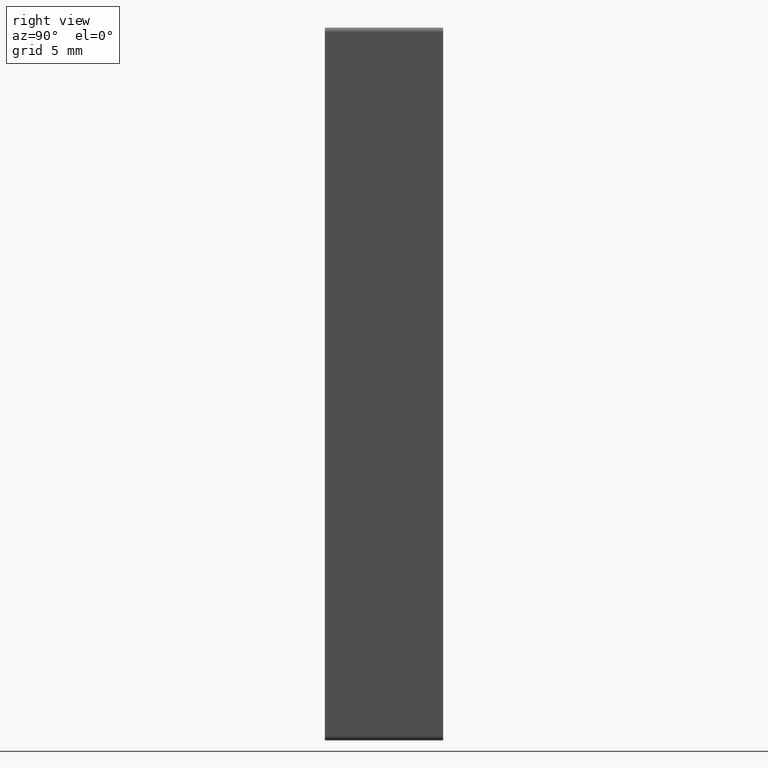
[diagram: clean part render]
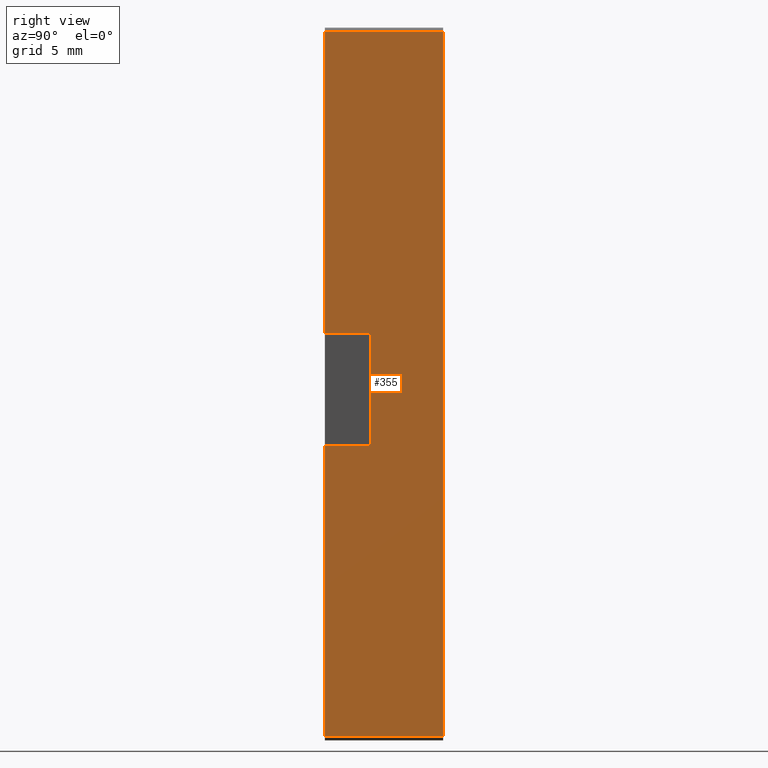
[diagram: same view with one face highlighted and labeled with its STEP entity id]
A machine part, right view. The second image highlights one B-rep face of the part: STEP entity #355.
In plain terms, the highlighted planar face has unit normal (1, 0, -0).
Its self-contained STEP definition (entity closure, byte-faithful):
#49=FACE_OUTER_BOUND('',#77,.T.);
#77=EDGE_LOOP('',(#306,#307,#308,#309,#310,#311,#312,#313));
#85=LINE('',#553,#110);
#87=LINE('',#557,#112);
#90=LINE('',#570,#115);
#102=LINE('',#622,#127);
#103=LINE('',#629,#128);
#104=LINE('',#631,#129);
#105=LINE('',#633,#130);
#106=LINE('',#634,#131);
#110=VECTOR('',#438,10.);
#112=VECTOR('',#440,10.);
#115=VECTOR('',#453,9.8814229);
#127=VECTOR('',#517,9.8814229);
#128=VECTOR('',#526,9.8814229);
#129=VECTOR('',#527,9.8814229);
#130=VECTOR('',#528,9.8814229);
#131=VECTOR('',#529,9.8814229);
#160=VERTEX_POINT('',#550);
#161=VERTEX_POINT('',#552);
#162=VERTEX_POINT('',#554);
#163=VERTEX_POINT('',#556);
#168=VERTEX_POINT('',#568);
#182=VERTEX_POINT('',#620);
#185=VERTEX_POINT('',#630);
#186=VERTEX_POINT('',#632);
#192=EDGE_CURVE('',#161,#160,#85,.T.);
#194=EDGE_CURVE('',#163,#162,#87,.T.);
#201=EDGE_CURVE('',#160,#168,#90,.T.);
#226=EDGE_CURVE('',#182,#168,#102,.T.);
#229=EDGE_CURVE('',#163,#182,#103,.T.);
#230=EDGE_CURVE('',#185,#162,#104,.T.);
#231=EDGE_CURVE('',#186,#185,#105,.T.);
#232=EDGE_CURVE('',#161,#186,#106,.T.);
#306=ORIENTED_EDGE('',*,*,#192,.T.);
#307=ORIENTED_EDGE('',*,*,#201,.T.);
#308=ORIENTED_EDGE('',*,*,#226,.F.);
#309=ORIENTED_EDGE('',*,*,#229,.F.);
#310=ORIENTED_EDGE('',*,*,#194,.T.);
#311=ORIENTED_EDGE('',*,*,#230,.F.);
#312=ORIENTED_EDGE('',*,*,#231,.F.);
#313=ORIENTED_EDGE('',*,*,#232,.F.);
#335=PLANE('',#421);
#355=ADVANCED_FACE('',(#49),#335,.T.);
#421=AXIS2_PLACEMENT_3D('',#628,#524,#525);
#438=DIRECTION('',(-7.51072669634541E-16,0.,-1.));
#440=DIRECTION('',(-7.51072669634541E-16,0.,-1.));
#453=DIRECTION('',(0.,1.,0.));
#517=DIRECTION('',(-7.51072669634541E-16,0.,-1.));
#524=DIRECTION('center_axis',(1.,0.,-7.51072669634541E-16));
#525=DIRECTION('ref_axis',(-7.51072669634541E-16,0.,-1.));
#526=DIRECTION('',(0.,1.,0.));
#527=DIRECTION('',(0.,-1.,0.));
#528=DIRECTION('',(7.51072669634541E-16,0.,1.));
#529=DIRECTION('',(0.,1.,0.));
#550=CARTESIAN_POINT('',(-19.0166710544975,2.56297272763272,-59.027137691623));
#552=CARTESIAN_POINT('',(-19.0166710544975,2.56297272763272,-38.5779626271556));
#553=CARTESIAN_POINT('',(-19.0166710544975,2.56297272763272,-21.860635808998));
#554=CARTESIAN_POINT('',(-19.0166710544975,2.56297272763272,-30.6728243071556));
#556=CARTESIAN_POINT('',(-19.0166710544975,2.56297272763272,-9.47180184812295));
#557=CARTESIAN_POINT('',(-19.0166710544975,2.56297272763272,-21.860635808998));
#568=CARTESIAN_POINT('',(-19.0166710544975,10.8896525467827,-59.027137691623));
#570=CARTESIAN_POINT('',(-19.0166710544975,1.86297272763272,-59.027137691623));
#620=CARTESIAN_POINT('',(-19.0166710544975,10.8896525467827,-9.47180184812295));
#622=CARTESIAN_POINT('',(-19.0166710544975,10.8896525467827,-59.027137691623));
#628=CARTESIAN_POINT('Origin',(-19.0166710544975,1.86297272763272,-9.47180184812296));
#629=CARTESIAN_POINT('',(-19.0166710544975,1.86297272763272,-9.47180184812295));
#630=CARTESIAN_POINT('',(-19.0166710544975,5.81554188763272,-30.6728243071556));
#631=CARTESIAN_POINT('',(-19.0166710544975,1.86297272763272,-30.6728243071556));
#632=CARTESIAN_POINT('',(-19.0166710544975,5.81554188763272,-38.5779626271556));
#633=CARTESIAN_POINT('',(-19.0166710544975,5.81554188763272,-22.0485976576393));
#634=CARTESIAN_POINT('',(-19.0166710544975,1.86297272763272,-38.5779626271556));